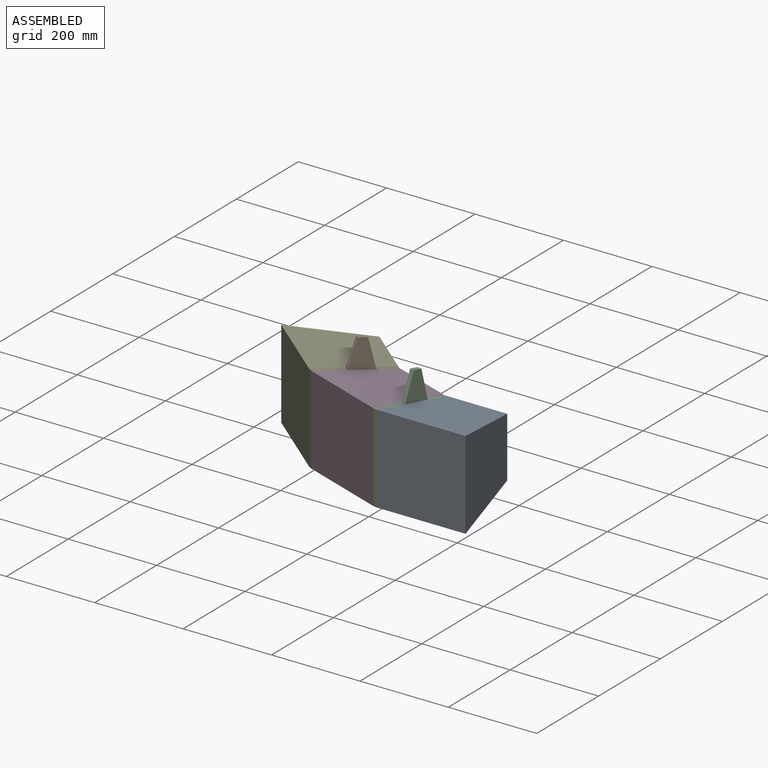
[diagram: assembled view]
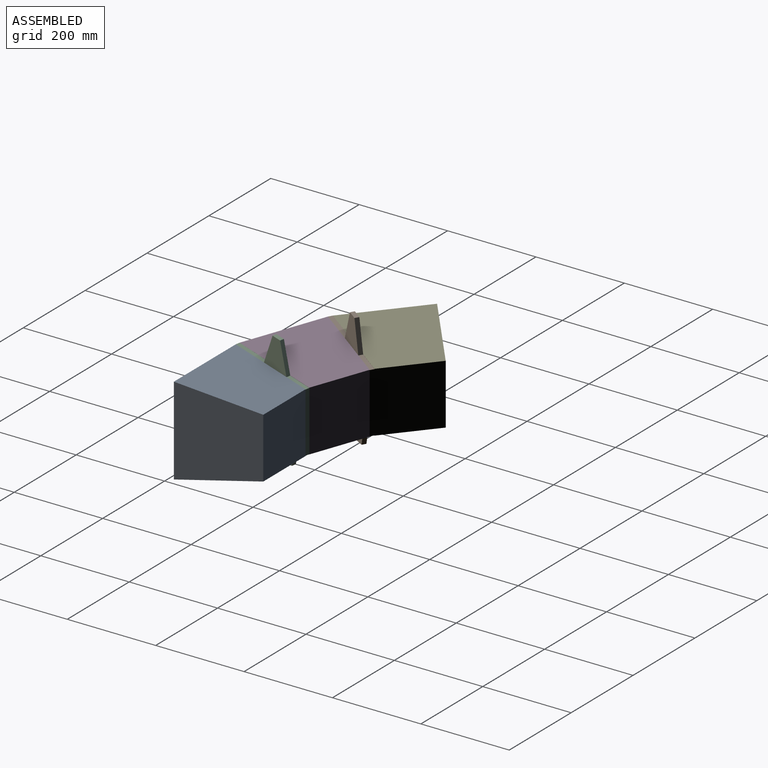
[diagram: assembled view, second angle]
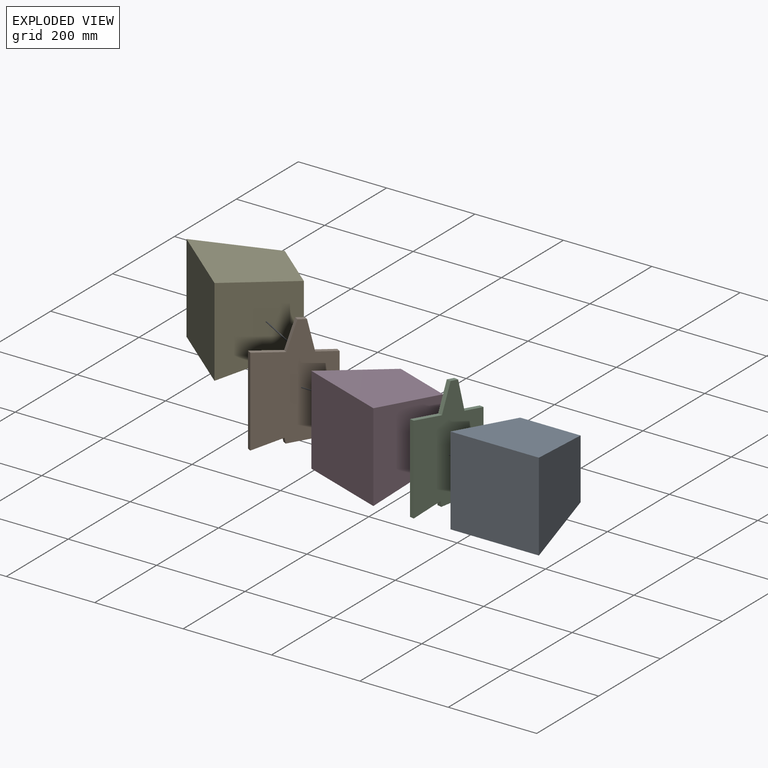
[diagram: exploded view]
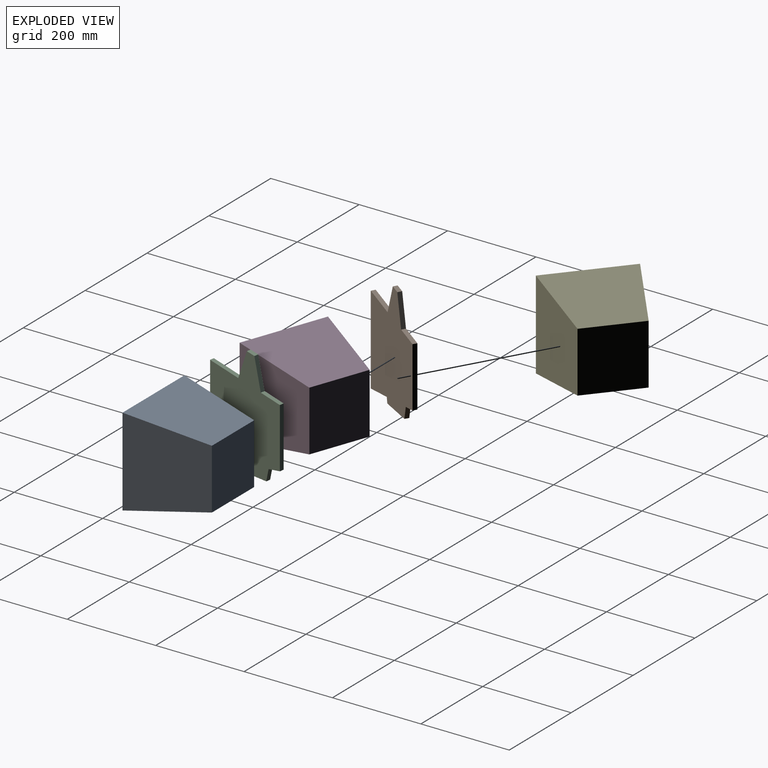
[diagram: exploded view, second angle]
ASSEMBLY  parts=5 mates=4
PART A: 6 faces, bbox 200x180x200 mm
  f0: plane 200x180mm, normal (0.98,0.17,0), area 30754.2mm2, adj f1,f3,f4,f5
  f1: plane 200x180mm, normal (0,0.17,0.98), area 30754.2mm2, adj f0,f2,f4,f5
  f2: plane 200x180mm, normal (-0.98,0.17,0), area 30754.2mm2, adj f1,f3,f4,f5
  f3: plane 200x180mm, normal (0,0.17,-0.98), area 30754.2mm2, adj f0,f2,f4,f5
  f4: plane 136.52x136.52mm, normal (0,1,0), area 18638.3mm2, adj f0,f1,f2,f3
  f5: plane 200x200mm, normal (0,-1,0), area 40000mm2, adj f0,f1,f2,f3
PART B: 14 faces, bbox 182.8x10x249.5 mm
  f0: plane 62.5x22.75mm, normal (-0.94,0,0.34), area 665.1mm2, adj f1,f11,f12,f13
  f1: plane 73.71x13mm, normal (0.17,0,0.98), area 748.5mm2, adj f0,f2,f12,f13
  f2: plane 200x10mm, normal (-1,0,0), area 2000mm2, adj f1,f3,f12,f13
  f3: plane 70.1x12.36mm, normal (0.17,0,-0.98), area 711.9mm2, adj f2,f4,f12,f13
  f4: plane 12.36x10mm, normal (-0.98,0,-0.17), area 125.5mm2, adj f3,f5,f12,f13
  f5: plane 75x10mm, normal (0,0,-1), area 750mm2, adj f4,f6,f12,f13
  f6: plane 27.06x10mm, normal (0.97,0,-0.22), area 277.6mm2, adj f5,f7,f12,f13
  f7: plane 29.33x10mm, normal (0.17,0,-0.98), area 297.8mm2, adj f6,f8,f12,f13
  f8: plane 135.54x10mm, normal (1,0,0), area 1355.3mm2, adj f7,f9,f12,f13
  f9: plane 49.91x10mm, normal (0.17,0,0.98), area 506.7mm2, adj f8,f10,f12,f13
  f10: plane 69.46x16.74mm, normal (0.97,0,0.23), area 714.5mm2, adj f9,f11,f12,f13
  f11: plane 19.7x10mm, normal (0.17,0,0.98), area 200mm2, adj f0,f10,f12,f13
  f12: plane 249.5x182.8mm, normal (0,-1,0), area 34837.3mm2, adj f0,f1,f2,f3,f4,f5,f6,f7
  f13: plane 249.5x182.8mm, normal (0,1,0), area 34837.3mm2, adj f0,f1,f2,f3,f4,f5,f6,f7
PART C: same geometry as B
PART D: same geometry as A
PART E: same geometry as A
PLACE A t=(102.73,23.06,182.04)mm
PLACE B rot(axis=(0,0,1),60deg) t=(-203.71,98.2,82.04)mm
PLACE C rot(axis=(0,0,1),80deg) t=(-7.11,24.8,82.04)mm
PLACE D rot(axis=(0,0,-1),20deg) t=(-101.08,59,182.04)mm
PLACE E rot(axis=(0,0,-1),40deg) t=(-280.32,162.48,182.04)mm
MATE fastened B.f13 <-> E.f0  axis (-0.87,0.5,0) through (-203.71,98.2,282.04)mm
MATE fastened B.f12 <-> D.f2  axis (0.87,-0.5,0) through (-195.05,93.2,282.04)mm
MATE fastened D.f0 <-> C.f13  axis (0.98,-0.17,0) through (-7.11,24.8,282.04)mm
MATE fastened C.f12 <-> A.f2  axis (0.98,-0.17,0) through (2.73,23.06,282.04)mm
